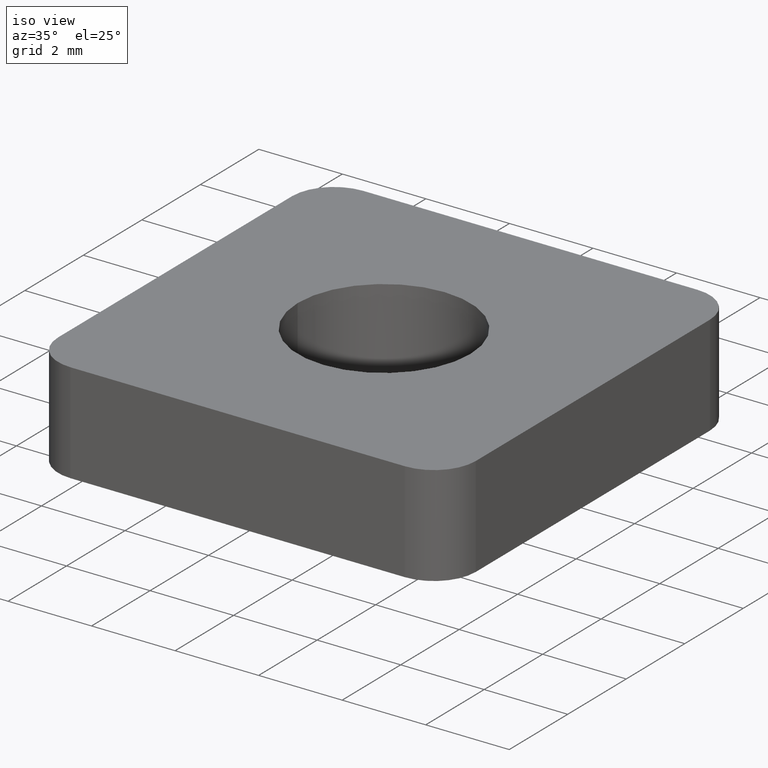
[diagram: clean part render]
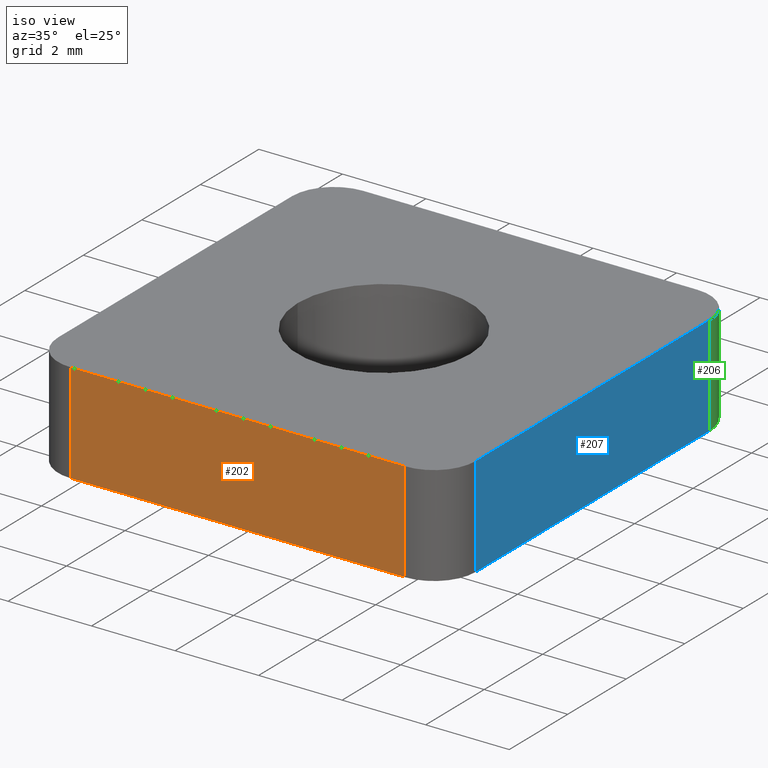
[diagram: same view with three faces highlighted in distinct colors, each labeled with its STEP entity id]
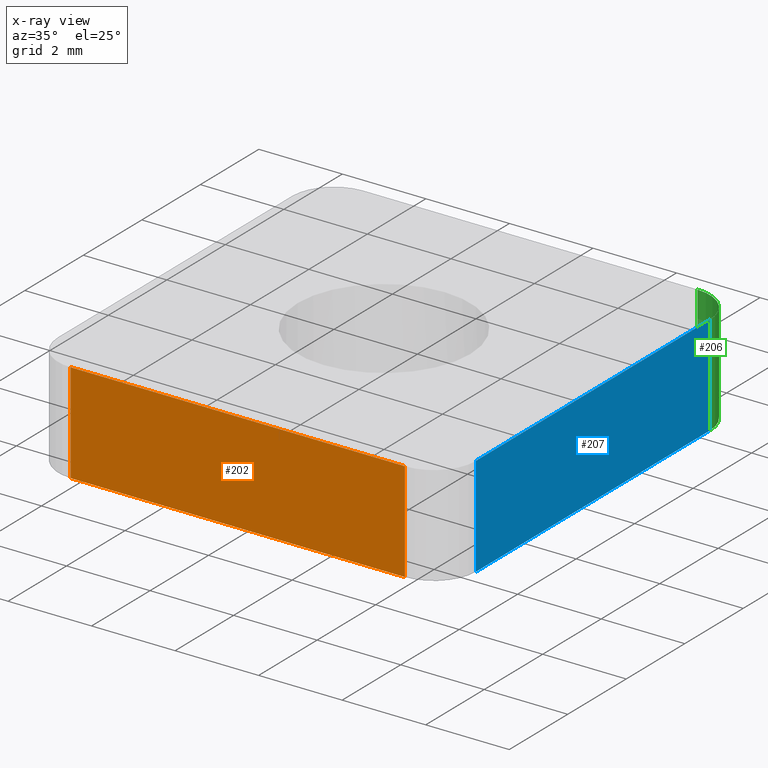
[diagram: x-ray of the same camera — body ghosted, the three highlighted faces saturated]
A machine part, iso view with three faces highlighted in distinct colors.
The next image is the same camera in x-ray (body ghosted, the three faces saturated) — at least one of them is partly hidden behind the body in this view.
Their STEP definitions:

[orange] entity #202 — the highlighted planar face has unit normal (0, 1, 0).
#17=PLANE('',#238);
#25=FACE_OUTER_BOUND('',#36,.T.);
#36=EDGE_LOOP('',(#148,#149,#150,#151));
#49=LINE('',#333,#66);
#50=LINE('',#336,#67);
#51=LINE('',#338,#68);
#52=LINE('',#339,#69);
#66=VECTOR('',#271,10.);
#67=VECTOR('',#274,8.);
#68=VECTOR('',#275,2.4);
#69=VECTOR('',#276,8.);
#95=VERTEX_POINT('',#326);
#98=VERTEX_POINT('',#331);
#99=VERTEX_POINT('',#335);
#100=VERTEX_POINT('',#337);
#118=EDGE_CURVE('',#98,#95,#49,.T.);
#119=EDGE_CURVE('',#98,#99,#50,.T.);
#120=EDGE_CURVE('',#100,#99,#51,.T.);
#121=EDGE_CURVE('',#95,#100,#52,.T.);
#148=ORIENTED_EDGE('',*,*,#118,.F.);
#149=ORIENTED_EDGE('',*,*,#119,.T.);
#150=ORIENTED_EDGE('',*,*,#120,.F.);
#151=ORIENTED_EDGE('',*,*,#121,.F.);
#202=ADVANCED_FACE('',(#25),#17,.F.);
#238=AXIS2_PLACEMENT_3D('',#334,#272,#273);
#271=DIRECTION('',(0.,0.,1.));
#272=DIRECTION('center_axis',(0.,1.,0.));
#273=DIRECTION('ref_axis',(0.,0.,1.));
#274=DIRECTION('',(1.,0.,0.));
#275=DIRECTION('',(0.,0.,-1.));
#276=DIRECTION('',(1.,0.,0.));
#326=CARTESIAN_POINT('',(-4.,-5.,0.));
#331=CARTESIAN_POINT('',(-4.,-5.,-2.4));
#333=CARTESIAN_POINT('',(-4.,-5.,0.));
#334=CARTESIAN_POINT('Origin',(-4.,-5.,0.));
#335=CARTESIAN_POINT('',(4.,-4.99999999999988,-2.4));
#336=CARTESIAN_POINT('',(-4.,-5.,-2.4));
#337=CARTESIAN_POINT('',(4.,-4.99999999999988,0.));
#338=CARTESIAN_POINT('',(4.,-4.99999999999988,0.));
#339=CARTESIAN_POINT('',(-4.,-5.,0.));

[blue] entity #207 — the highlighted planar face has unit normal (-1, 0, 0).
#20=PLANE('',#248);
#30=FACE_OUTER_BOUND('',#42,.T.);
#42=EDGE_LOOP('',(#173,#174,#175,#176));
#55=LINE('',#350,#72);
#60=LINE('',#364,#77);
#61=LINE('',#368,#78);
#62=LINE('',#369,#79);
#72=VECTOR('',#285,7.99999999999989);
#77=VECTOR('',#300,2.4);
#78=VECTOR('',#305,2.4);
#79=VECTOR('',#306,7.99999999999989);
#104=VERTEX_POINT('',#347);
#105=VERTEX_POINT('',#349);
#109=VERTEX_POINT('',#363);
#110=VERTEX_POINT('',#367);
#126=EDGE_CURVE('',#105,#104,#55,.T.);
#133=EDGE_CURVE('',#109,#104,#60,.T.);
#135=EDGE_CURVE('',#110,#105,#61,.T.);
#136=EDGE_CURVE('',#110,#109,#62,.T.);
#173=ORIENTED_EDGE('',*,*,#135,.T.);
#174=ORIENTED_EDGE('',*,*,#126,.T.);
#175=ORIENTED_EDGE('',*,*,#133,.F.);
#176=ORIENTED_EDGE('',*,*,#136,.F.);
#207=ADVANCED_FACE('',(#30),#20,.F.);
#248=AXIS2_PLACEMENT_3D('',#366,#303,#304);
#285=DIRECTION('',(0.,1.,0.));
#300=DIRECTION('',(0.,0.,-1.));
#303=DIRECTION('center_axis',(-1.,0.,0.));
#304=DIRECTION('ref_axis',(0.,0.,1.));
#305=DIRECTION('',(0.,0.,-1.));
#306=DIRECTION('',(0.,1.,0.));
#347=CARTESIAN_POINT('',(5.,4.,-2.4));
#349=CARTESIAN_POINT('',(5.,-3.99999999999989,-2.4));
#350=CARTESIAN_POINT('',(5.,8.50000000000011,-2.4));
#363=CARTESIAN_POINT('',(5.,4.,0.));
#364=CARTESIAN_POINT('',(5.,4.,0.));
#366=CARTESIAN_POINT('Origin',(5.,-3.99999999999989,0.));
#367=CARTESIAN_POINT('',(5.,-3.99999999999989,0.));
#368=CARTESIAN_POINT('',(5.,-3.99999999999989,0.));
#369=CARTESIAN_POINT('',(5.,8.50000000000011,0.));

[green] entity #206 — the highlighted cylindrical surface (partial cylindrical patch) has radius 1 mm, axis along (0, 0, 1).
#29=FACE_OUTER_BOUND('',#41,.T.);
#41=EDGE_LOOP('',(#169,#170,#171,#172));
#59=LINE('',#361,#76);
#60=LINE('',#364,#77);
#76=VECTOR('',#297,2.4);
#77=VECTOR('',#300,2.4);
#87=CIRCLE('',#241,1.);
#90=CIRCLE('',#247,1.);
#103=VERTEX_POINT('',#345);
#104=VERTEX_POINT('',#347);
#108=VERTEX_POINT('',#359);
#109=VERTEX_POINT('',#363);
#125=EDGE_CURVE('',#104,#103,#87,.T.);
#132=EDGE_CURVE('',#108,#103,#59,.T.);
#133=EDGE_CURVE('',#109,#104,#60,.T.);
#134=EDGE_CURVE('',#109,#108,#90,.T.);
#169=ORIENTED_EDGE('',*,*,#133,.T.);
#170=ORIENTED_EDGE('',*,*,#125,.T.);
#171=ORIENTED_EDGE('',*,*,#132,.F.);
#172=ORIENTED_EDGE('',*,*,#134,.F.);
#198=CYLINDRICAL_SURFACE('',#246,1.);
#206=ADVANCED_FACE('',(#29),#198,.T.);
#241=AXIS2_PLACEMENT_3D('',#348,#283,#284);
#246=AXIS2_PLACEMENT_3D('',#362,#298,#299);
#247=AXIS2_PLACEMENT_3D('',#365,#301,#302);
#283=DIRECTION('center_axis',(0.,0.,1.));
#284=DIRECTION('ref_axis',(1.,0.,0.));
#297=DIRECTION('',(0.,0.,-1.));
#298=DIRECTION('center_axis',(0.,0.,1.));
#299=DIRECTION('ref_axis',(1.,0.,0.));
#300=DIRECTION('',(0.,0.,-1.));
#301=DIRECTION('center_axis',(0.,0.,1.));
#302=DIRECTION('ref_axis',(1.,0.,0.));
#345=CARTESIAN_POINT('',(4.,5.,-2.4));
#347=CARTESIAN_POINT('',(5.,4.,-2.4));
#348=CARTESIAN_POINT('Origin',(4.,4.,-2.4));
#359=CARTESIAN_POINT('',(4.,5.,0.));
#361=CARTESIAN_POINT('',(4.,5.,0.));
#362=CARTESIAN_POINT('Origin',(4.,4.,0.));
#363=CARTESIAN_POINT('',(5.,4.,0.));
#364=CARTESIAN_POINT('',(5.,4.,0.));
#365=CARTESIAN_POINT('Origin',(4.,4.,0.));